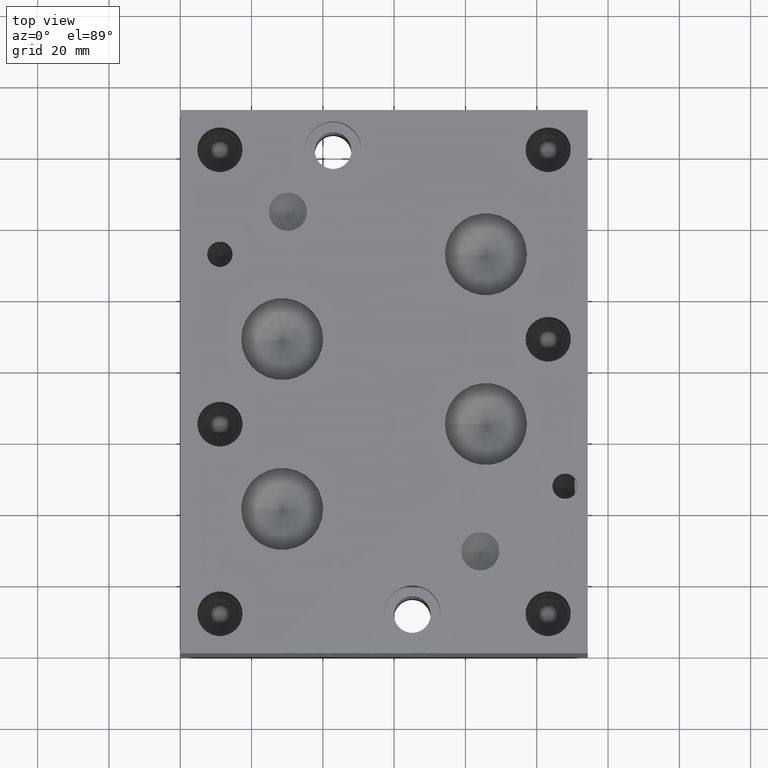
[diagram: clean part render]
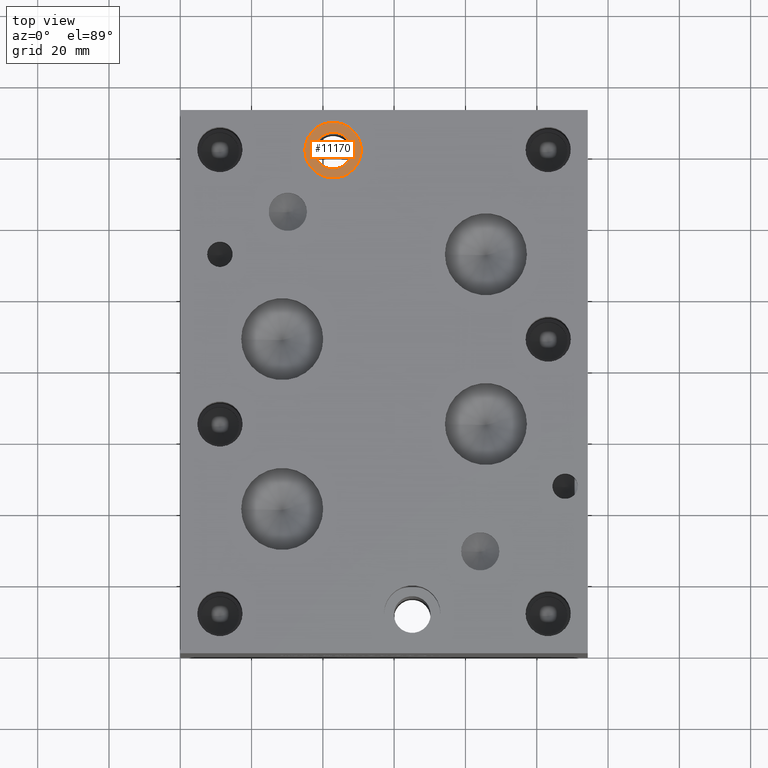
[diagram: same view with one face highlighted and labeled with its STEP entity id]
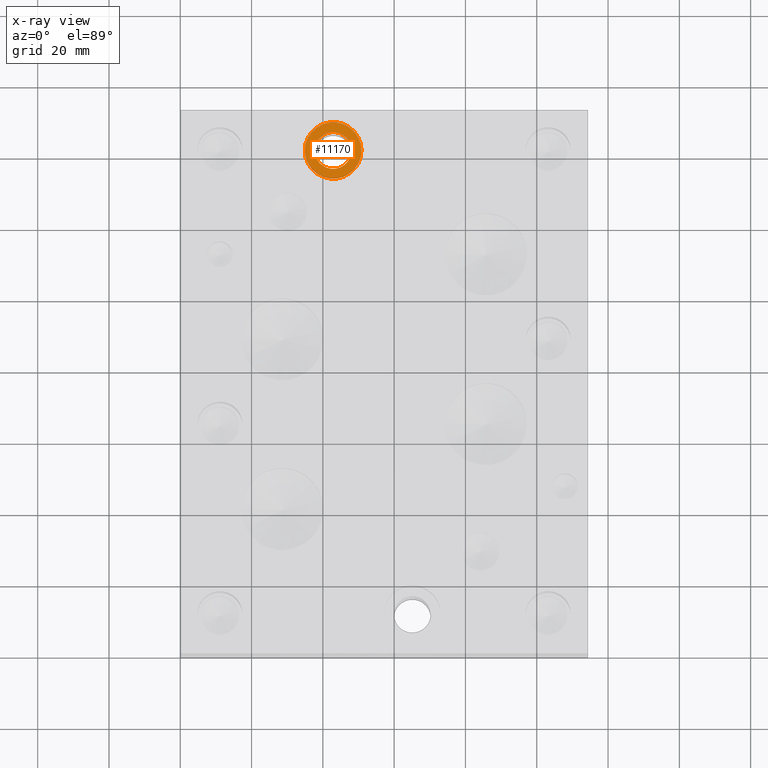
[diagram: x-ray of the same camera — body ghosted, the highlighted face saturated]
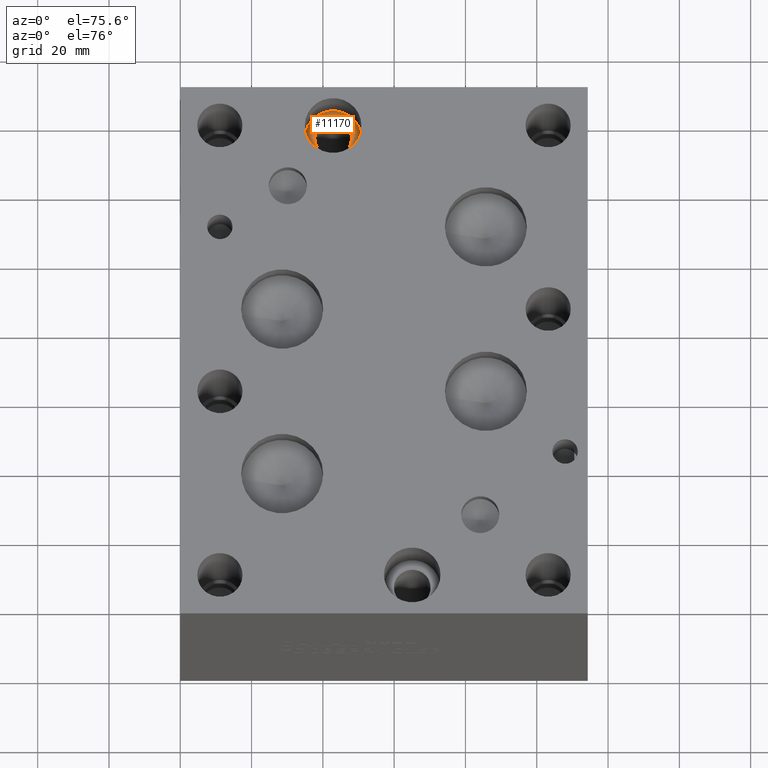
[diagram: same view with one face highlighted and labeled with its STEP entity id]
A machine part, top view. The second image highlights one B-rep face of the part: STEP entity #11170.
The next image is the same camera in x-ray: the body ghosted, the highlighted face saturated — about 0% of this face is hidden behind the body in this view.
A second angle (auxiliary view) of the same face is appended — the face is thin or edge-on in the first view.
In plain terms, the highlighted planar face has unit normal (0, 0, 1).
Its self-contained STEP definition (entity closure, byte-faithful):
#171=CIRCLE('',#11688,7.9375);
#172=CIRCLE('',#11689,7.9375);
#173=CIRCLE('',#11690,5.1562);
#320=FACE_BOUND('',#1847,.T.);
#677=PLANE('',#11687);
#1210=FACE_OUTER_BOUND('',#1846,.T.);
#1846=EDGE_LOOP('',(#9764,#9765));
#1847=EDGE_LOOP('',(#9766));
#5322=VERTEX_POINT('',#18940);
#5323=VERTEX_POINT('',#18941);
#5324=VERTEX_POINT('',#18944);
#6837=EDGE_CURVE('',#5322,#5323,#171,.T.);
#6838=EDGE_CURVE('',#5323,#5322,#172,.T.);
#6839=EDGE_CURVE('',#5324,#5324,#173,.T.);
#9764=ORIENTED_EDGE('',*,*,#6837,.T.);
#9765=ORIENTED_EDGE('',*,*,#6838,.T.);
#9766=ORIENTED_EDGE('',*,*,#6839,.F.);
#11170=ADVANCED_FACE('',(#1210,#320),#677,.T.);
#11687=AXIS2_PLACEMENT_3D('',#18939,#13756,#13757);
#11688=AXIS2_PLACEMENT_3D('',#18942,#13758,#13759);
#11689=AXIS2_PLACEMENT_3D('',#18943,#13760,#13761);
#11690=AXIS2_PLACEMENT_3D('',#18945,#13762,#13763);
#13756=DIRECTION('center_axis',(0.,0.,1.));
#13757=DIRECTION('ref_axis',(1.,0.,0.));
#13758=DIRECTION('center_axis',(0.,0.,1.));
#13759=DIRECTION('ref_axis',(1.,0.,0.));
#13760=DIRECTION('center_axis',(0.,0.,1.));
#13761=DIRECTION('ref_axis',(1.,0.,0.));
#13762=DIRECTION('center_axis',(0.,0.,1.));
#13763=DIRECTION('ref_axis',(1.,0.,0.));
#18939=CARTESIAN_POINT('Origin',(42.8752,141.2748,61.9252));
#18940=CARTESIAN_POINT('',(50.8127,141.2748,61.9252));
#18941=CARTESIAN_POINT('',(34.9377,141.2748,61.9252));
#18942=CARTESIAN_POINT('Origin',(42.8752,141.2748,61.9252));
#18943=CARTESIAN_POINT('Origin',(42.8752,141.2748,61.9252));
#18944=CARTESIAN_POINT('',(37.719,141.2748,61.9252));
#18945=CARTESIAN_POINT('Origin',(42.8752,141.2748,61.9252));